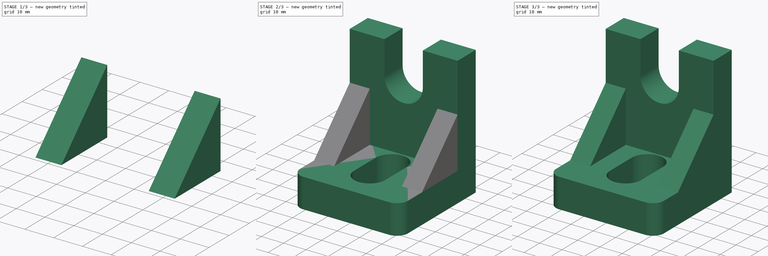
[diagram: build sequence overview — one tinted view per stage of 3, left to right]
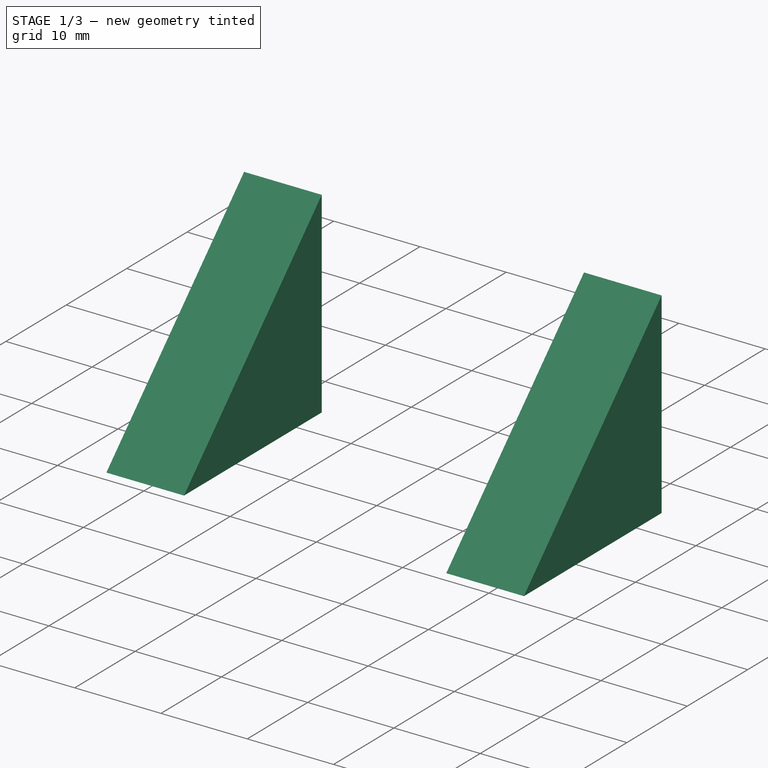
[diagram: stage 1 of 3 — iso view after this stage's code; geometry added in this stage tinted green]
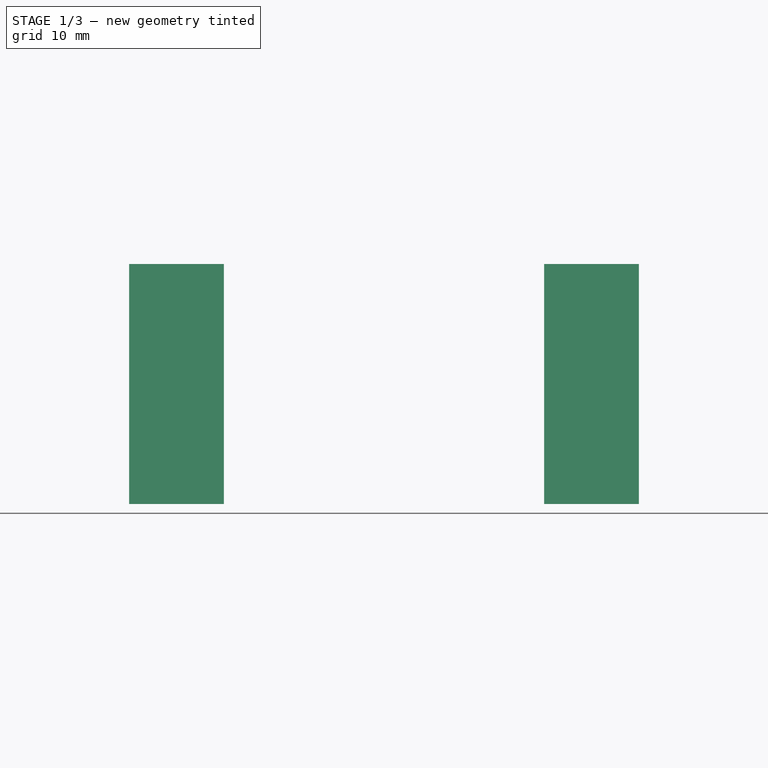
[diagram: stage 1 of 3 — front view after this stage's code; geometry added in this stage tinted green]
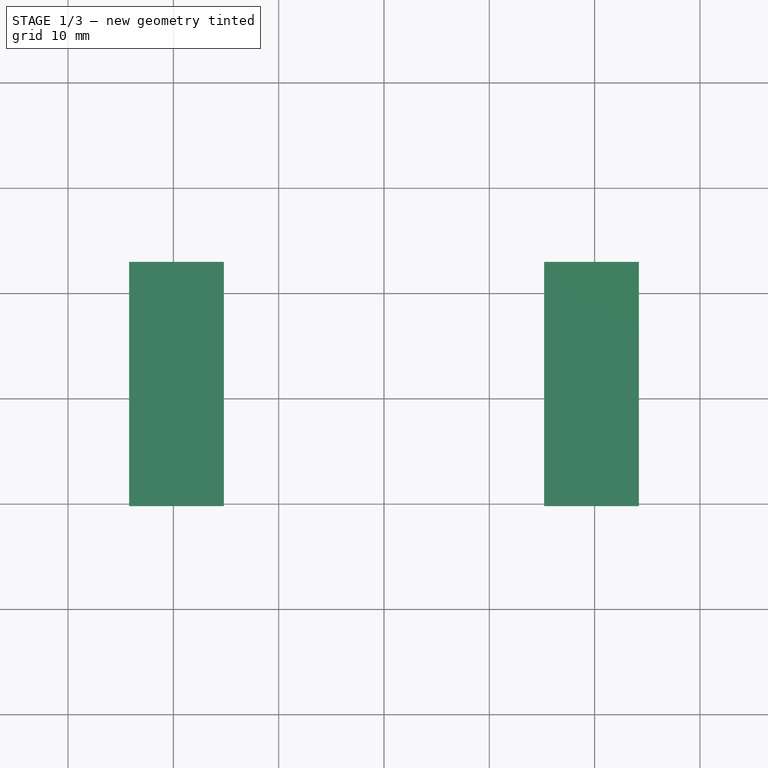
[diagram: stage 1 of 3 — top view after this stage's code; geometry added in this stage tinted green]
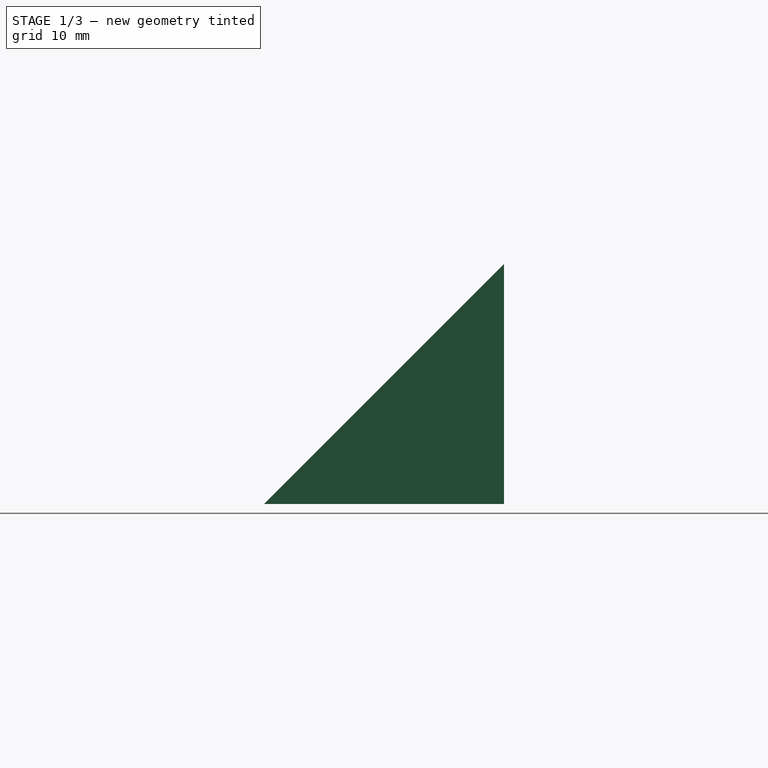
[diagram: stage 1 of 3 — right view after this stage's code; geometry added in this stage tinted green]
FCSTD DOCUMENT  (FreeCAD 0.16R6712 (Git))
Label: Huecos y escuadras
License: All rights reserved
LicenseURL: http://en.wikipedia.org/wiki/All_rights_reserved
objects: Sketcher::SketchObject×4, PartDesign::Pad×4, Part::MultiFuse×3
note: 15 computed .brp shape members not serialized (recipe doc carries the construction recipe); baked Part::Feature solids carry a one-line shape summary decoded from their .brp

FEATURE [Sketcher::SketchObject] Sketch002
  Placement = pos=(-24.2,0,0) rot=(0.57735,0.57735,0.57735;2.0944rad)
  sketch-geometry (3):
    g0: LineSegment StartX=-10.2 StartY=13.2 StartZ=0 EndX=12.6 EndY=13.2 EndZ=0
    g1: LineSegment StartX=12.6 StartY=13.2 StartZ=0 EndX=12.6 EndY=36 EndZ=0
    g2: LineSegment StartX=12.6 StartY=36 StartZ=0 EndX=-10.2 EndY=13.2 EndZ=0
  constraints (9):
    c: Horizontal(g0)
    c: Coincident(g0,g1)
    c: Vertical(g1)
    c: Coincident(g1,g2)
    c: Coincident(g2,g0)
    c: Equal(g0,g1)
    c: DistanceX(g0,g0) = 22.8
    c: DistanceY(g-1,g0) = 13.2
    c: DistanceX(g-1,g0) = 12.6
FEATURE [Sketcher::SketchObject] Sketch003
  Placement = pos=(24.2,0,0) rot=(0.57735,0.57735,0.57735;2.0944rad)
  sketch-geometry (3):
    g0: LineSegment StartX=-10.2 StartY=13.2 StartZ=0 EndX=12.6 EndY=13.2 EndZ=0
    g1: LineSegment StartX=12.6 StartY=13.2 StartZ=0 EndX=12.6 EndY=36 EndZ=0
    g2: LineSegment StartX=12.6 StartY=36 StartZ=0 EndX=-10.2 EndY=13.2 EndZ=0
  constraints (9):
    c: Horizontal(g0)
    c: Coincident(g0,g1)
    c: Vertical(g1)
    c: Coincident(g1,g2)
    c: Coincident(g2,g0)
    c: Equal(g0,g1)
    c: DistanceX(g0,g0) = 22.8
    c: DistanceY(g-1,g0) = 13.2
    c: DistanceX(g-1,g0) = 12.6
FEATURE [PartDesign::Pad] Pad002  label="Escuadra-izquierda"
  Length = 9
  Length2 = 100
  Placement = pos=(-24.2,0,0) rot=(0.57735,0.57735,0.57735;2.0944rad)
  Sketch = -> Sketch002
  Type = 0
FEATURE [PartDesign::Pad] Pad003  label="Escuadra-derecha"
  Length = 9
  Length2 = 100
  Placement = pos=(24.2,0,0) rot=(0.57735,0.57735,0.57735;2.0944rad)
  Reversed = true
  Sketch = -> Sketch003
  Type = 0
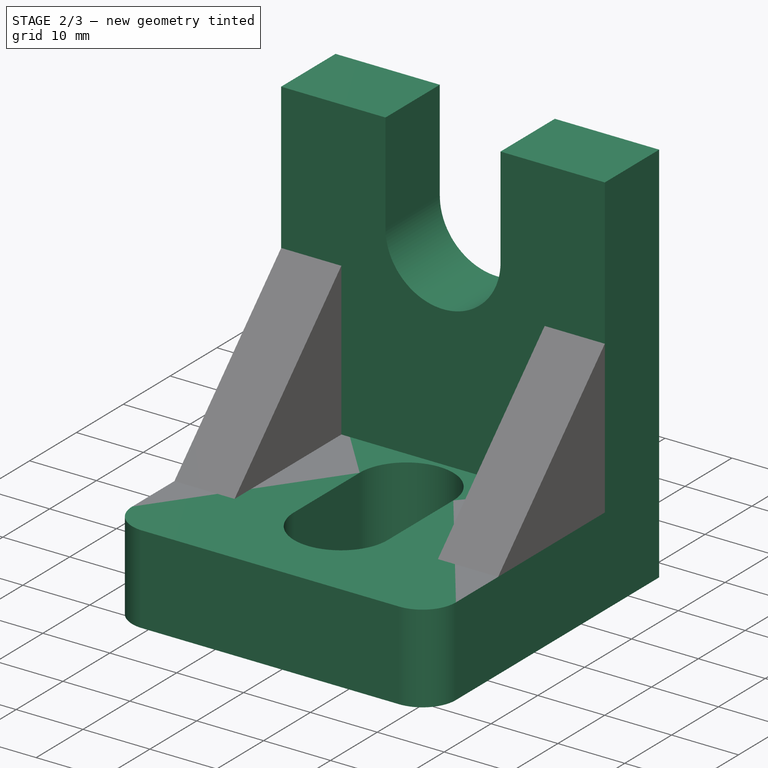
[diagram: stage 2 of 3 — iso view after this stage's code; geometry added in this stage tinted green]
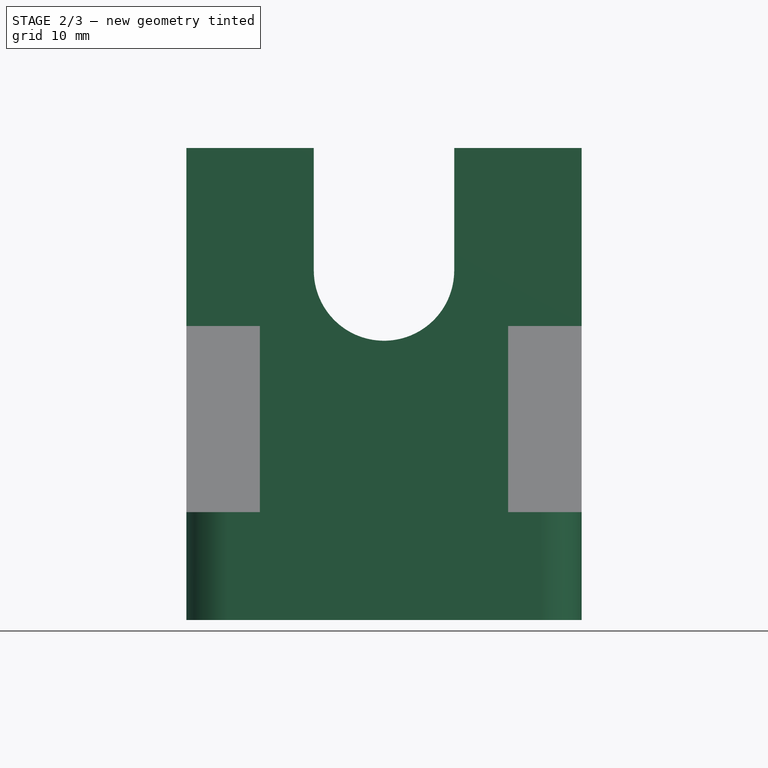
[diagram: stage 2 of 3 — front view after this stage's code; geometry added in this stage tinted green]
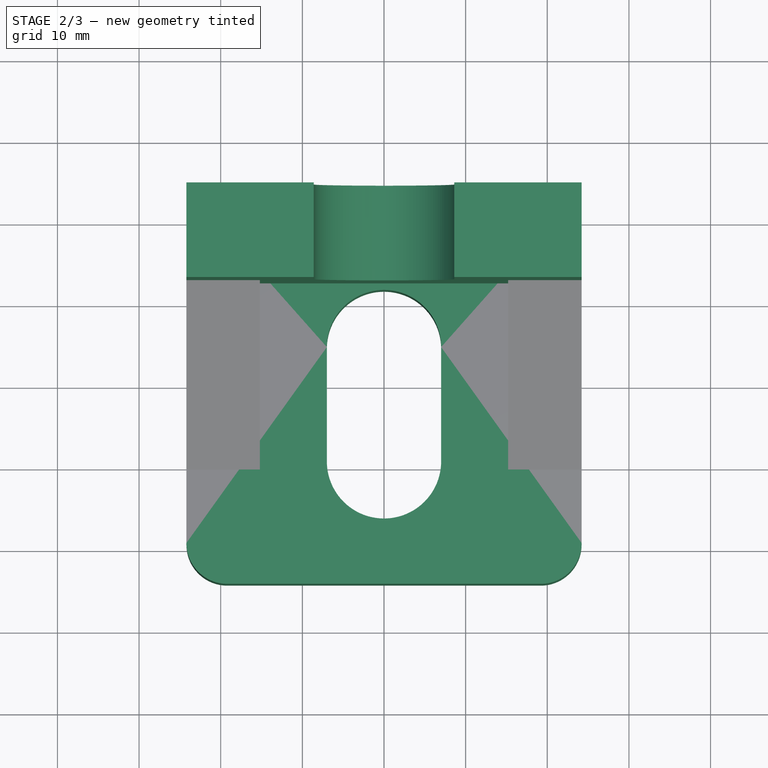
[diagram: stage 2 of 3 — top view after this stage's code; geometry added in this stage tinted green]
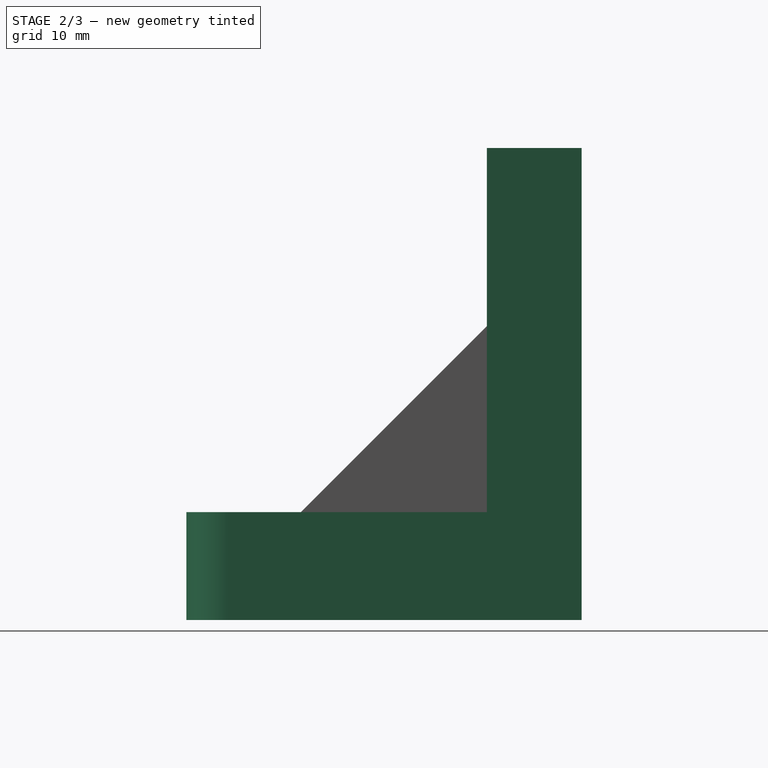
[diagram: stage 2 of 3 — right view after this stage's code; geometry added in this stage tinted green]
FEATURE [Sketcher::SketchObject] Sketch
  sketch-geometry (12):
    g0: LineSegment StartX=-24.2 StartY=24.2 StartZ=0 EndX=24.2 EndY=24.2 EndZ=0
    g1: LineSegment StartX=24.2 StartY=24.2 StartZ=0 EndX=24.2 EndY=-19.2 EndZ=0
    g2: LineSegment StartX=19.2 StartY=-24.2 StartZ=0 EndX=-19.2 EndY=-24.2 EndZ=0
    g3: LineSegment StartX=-24.2 StartY=-19.2 StartZ=0 EndX=-24.2 EndY=24.2 EndZ=0
    g4: ArcOfCircle CenterX=-19.2 CenterY=-19.2 CenterZ=0 NormalX=0 NormalY=0 NormalZ=1 Radius=5 StartAngle=3.14159 EndAngle=4.71239
    g5: ArcOfCircle CenterX=19.2 CenterY=-19.2 CenterZ=0 NormalX=0 NormalY=0 NormalZ=1 Radius=5 StartAngle=4.71239 EndAngle=6.28319
    g6: LineSegment [constr] StartX=7 StartY=4.8 StartZ=0 EndX=-7 EndY=4.8 EndZ=0
    g7: LineSegment StartX=7 StartY=4.8 StartZ=0 EndX=7 EndY=-9.2 EndZ=0
    g8: LineSegment [constr] StartX=7 StartY=-9.2 StartZ=0 EndX=-7 EndY=-9.2 EndZ=0
    g9: LineSegment StartX=-7 StartY=-9.2 StartZ=0 EndX=-7 EndY=4.8 EndZ=0
    g10: ArcOfCircle CenterX=0 CenterY=4.8 CenterZ=0 NormalX=0 NormalY=0 NormalZ=1 Radius=7 StartAngle=0 EndAngle=3.14159
    g11: ArcOfCircle CenterX=0 CenterY=-9.2 CenterZ=0 NormalX=0 NormalY=0 NormalZ=1 Radius=7 StartAngle=3.14159 EndAngle=6.28319
  constraints (37):
    c: Coincident(g0,g1)
    c: Coincident(g3,g0)
    c: Horizontal(g0)
    c: Horizontal(g2)
    c: Vertical(g1)
    c: Vertical(g3)
    c: Tangent(g3,g4) = 1.5708
    c: Tangent(g2,g4) = 1.5708
    c: Tangent(g2,g5) = 1.5708
    c: Tangent(g1,g5) = 1.5708
    c: DistanceY(g2,g0) = 48.4
    c: DistanceX(g0,g0) = 48.4
    c: Equal(g4,g5)
    c: Symmetric(g0,g0,g-2)
    c: Radius(g4) = 5
    c: DistanceY(g-1,g0) = 24.2
    c: Horizontal(g8)
    c: Vertical(g7)
    c: Vertical(g9)
    c: PointOnObject(g9,g11)
    c: PointOnObject(g8,g11)
    c: PointOnObject(g7,g10)
    c: PointOnObject(g11,g8)
    c: Coincident(g11,g8)
    c: Coincident(g11,g7)
    c: Coincident(g10,g6)
    c: DistanceY(g7,g7) = 14
    c: DistanceY(g2,g11) = 15
    c: Equal(g11,g10)
    c: Coincident(g10,g6)
    c: Coincident(g9,g6)
    c: Coincident(g7,g6)
    c: PointOnObject(g10,g6)
    c: Symmetric(g6,g6,g-2)
    c: Radius(g10) = 7
    c: Equal(g9,g7)
    c: Coincident(g8,g9)
FEATURE [PartDesign::Pad] Pad  label="Base"
  Length = 13.2
  Length2 = 100
  Sketch = -> Sketch
  Type = 0
FEATURE [Sketcher::SketchObject] Sketch001
  Placement = pos=(0,24.2,0) rot=(1,0,0;1.5708rad)
  sketch-geometry (9):
    g0: LineSegment StartX=-24.2 StartY=57.8 StartZ=0 EndX=-8.6 EndY=57.8 EndZ=0
    g1: LineSegment StartX=24.2 StartY=57.8 StartZ=0 EndX=24.2 EndY=13.2 EndZ=0
    g2: LineSegment StartX=24.2 StartY=13.2 StartZ=0 EndX=-24.2 EndY=13.2 EndZ=0
    g3: LineSegment StartX=-24.2 StartY=13.2 StartZ=0 EndX=-24.2 EndY=57.8 EndZ=0
    g4: LineSegment StartX=8.6 StartY=57.8 StartZ=0 EndX=8.6 EndY=42.8 EndZ=0
    g5: LineSegment [constr] StartX=8.6 StartY=42.8 StartZ=0 EndX=-8.6 EndY=42.8 EndZ=0
    g6: LineSegment StartX=-8.6 StartY=42.8 StartZ=0 EndX=-8.6 EndY=57.8 EndZ=0
    g7: LineSegment StartX=8.6 StartY=57.8 StartZ=0 EndX=24.2 EndY=57.8 EndZ=0
    g8: ArcOfCircle CenterX=0 CenterY=42.8 CenterZ=0 NormalX=0 NormalY=0 NormalZ=1 Radius=8.6 StartAngle=3.14159 EndAngle=6.28319
  constraints (26):
    c: Coincident(g1,g2)
    c: Coincident(g2,g3)
    c: Coincident(g3,g0)
    c: Horizontal(g2)
    c: Vertical(g1)
    c: Vertical(g3)
    c: DistanceX(g2,g1) = 48.4
    c: DistanceY(g8,g4) = 15
    c: Coincident(g8,g4)
    c: Radius(g8) = 8.6
    c: PointOnObject(g8,g5)
    c: Vertical(g6)
    c: Vertical(g4)
    c: Equal(g0,g7)
    c: Coincident(g4,g7)
    c: Coincident(g6,g0)
    c: Coincident(g5,g6)
    c: Coincident(g8,g5)
    c: Symmetric(g0,g1,g-2)
    c: Coincident(g1,g7)
    c: Horizontal(g0)
    c: Horizontal(g7)
    c: Horizontal(g5)
    c: DistanceY(g3,g3) = 44.6
    c: DistanceY(g-1,g1) = 13.2
    c: Coincident(g5,g4)
FEATURE [PartDesign::Pad] Pad001  label="Frontal"
  Length = 11.6
  Length2 = 100
  Placement = pos=(0,24.2,0) rot=(1,0,0;1.5708rad)
  Sketch = -> Sketch001
  Type = 0
FEATURE [Part::MultiFuse] Fusion001  label="Escuadras"
  Shapes = -> [Pad003,Pad002]
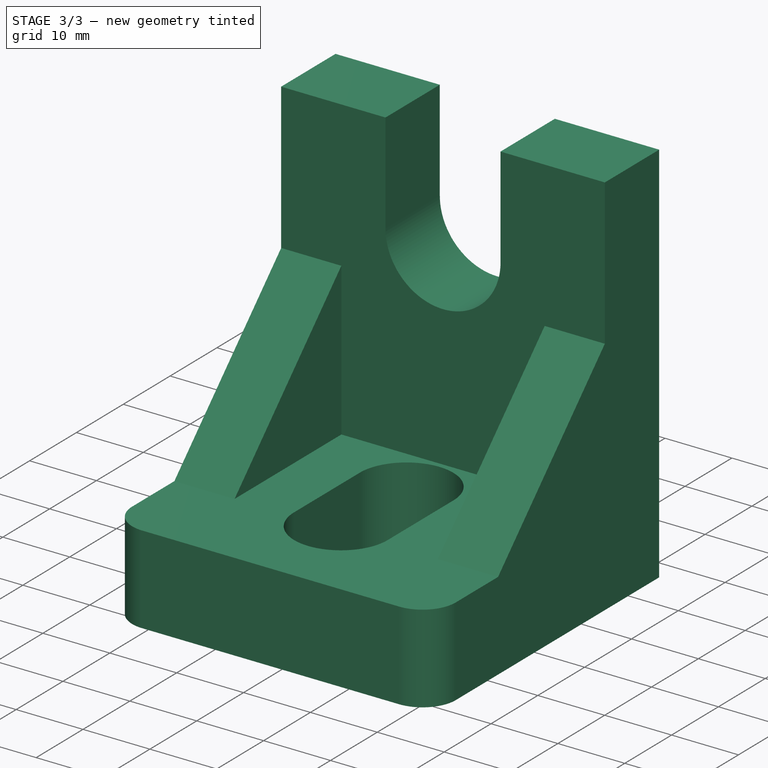
[diagram: stage 3 of 3 — iso view after this stage's code; geometry added in this stage tinted green]
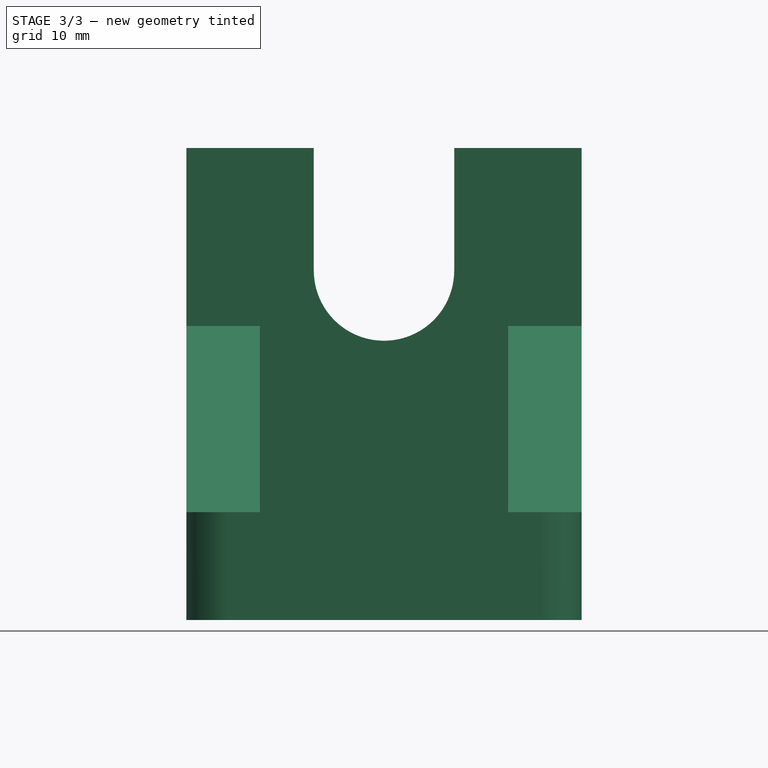
[diagram: stage 3 of 3 — front view after this stage's code; geometry added in this stage tinted green]
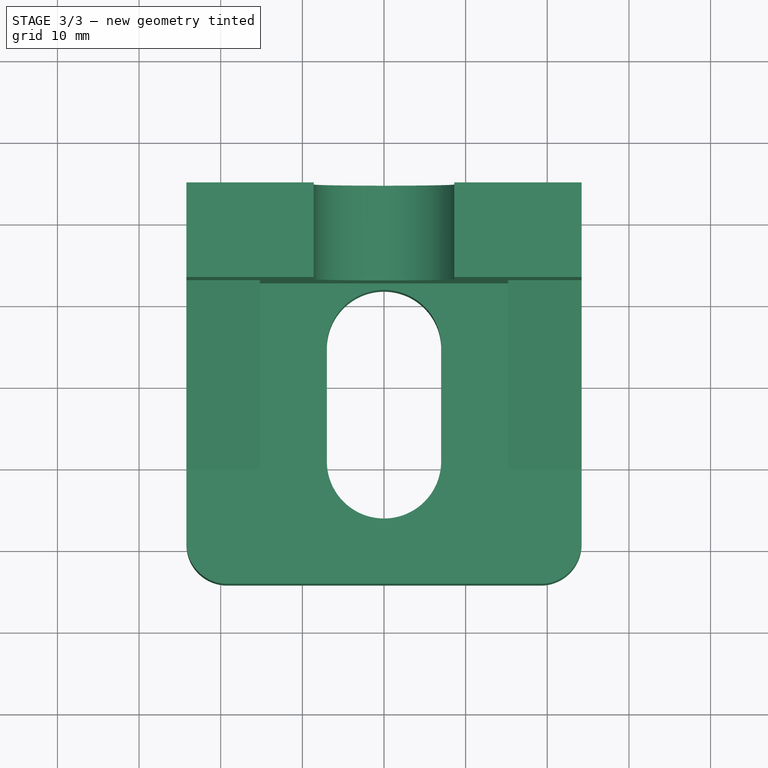
[diagram: stage 3 of 3 — top view after this stage's code; geometry added in this stage tinted green]
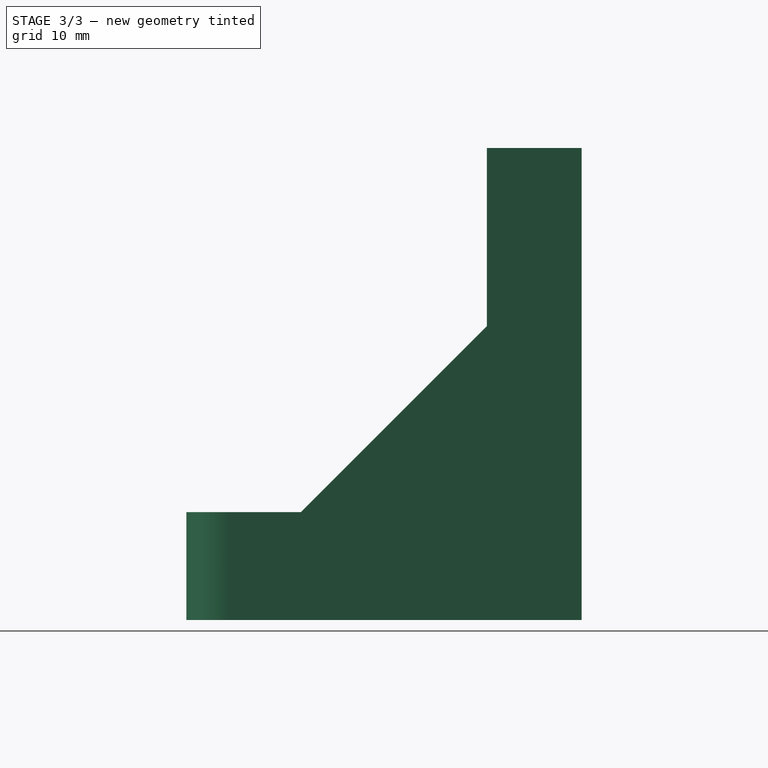
[diagram: stage 3 of 3 — right view after this stage's code; geometry added in this stage tinted green]
FEATURE [Part::MultiFuse] Fusion  label="Pieza sin chaflanes"
  Shapes = -> [Pad,Pad001]
FEATURE [Part::MultiFuse] Fusion002  label="Huecos-escuadras"
  Shapes = -> [Fusion001,Fusion]
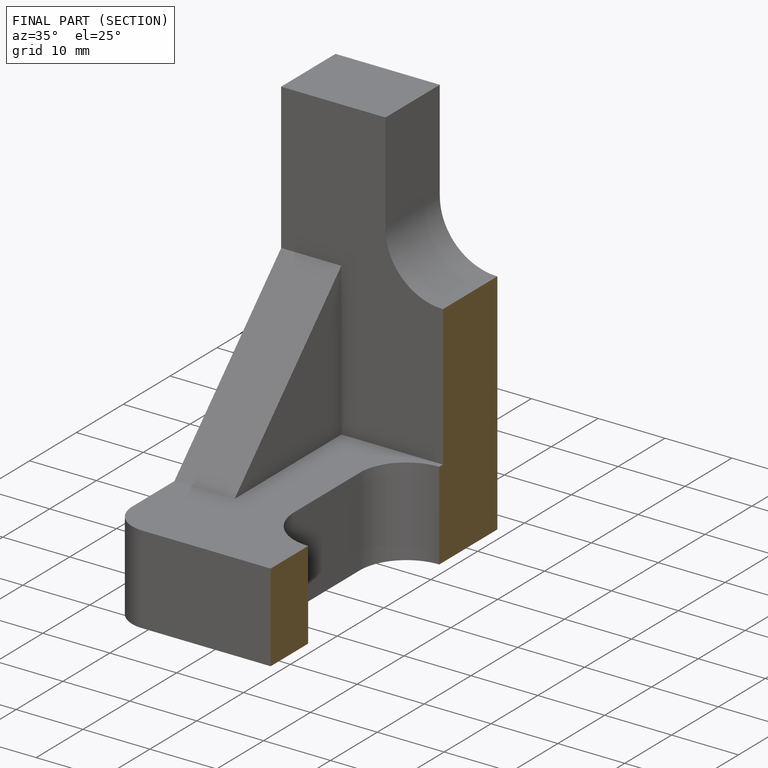
[diagram: finished part — half-section view (interior)]
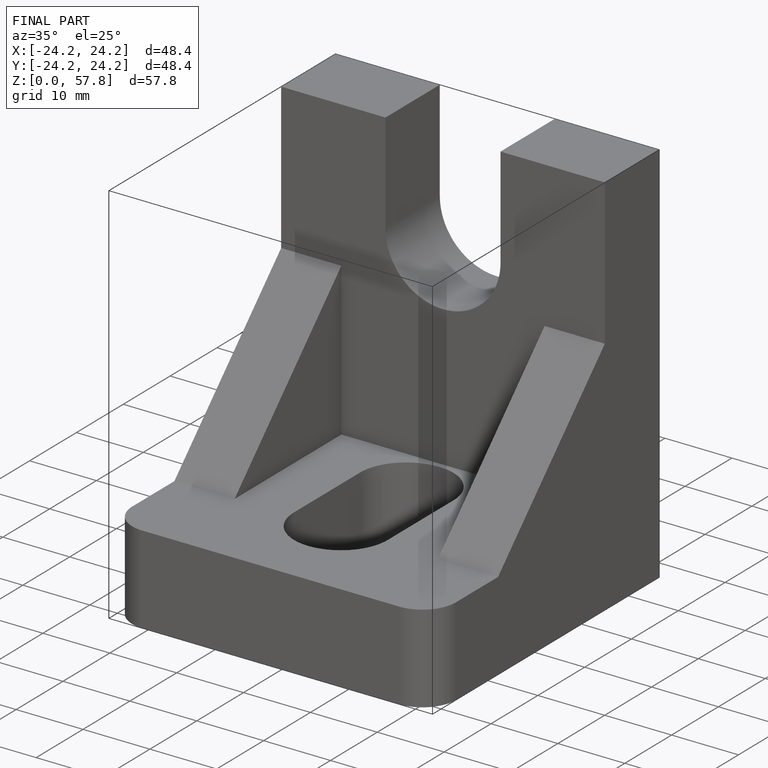
[diagram: finished part — iso view with bounding-box wireframe]
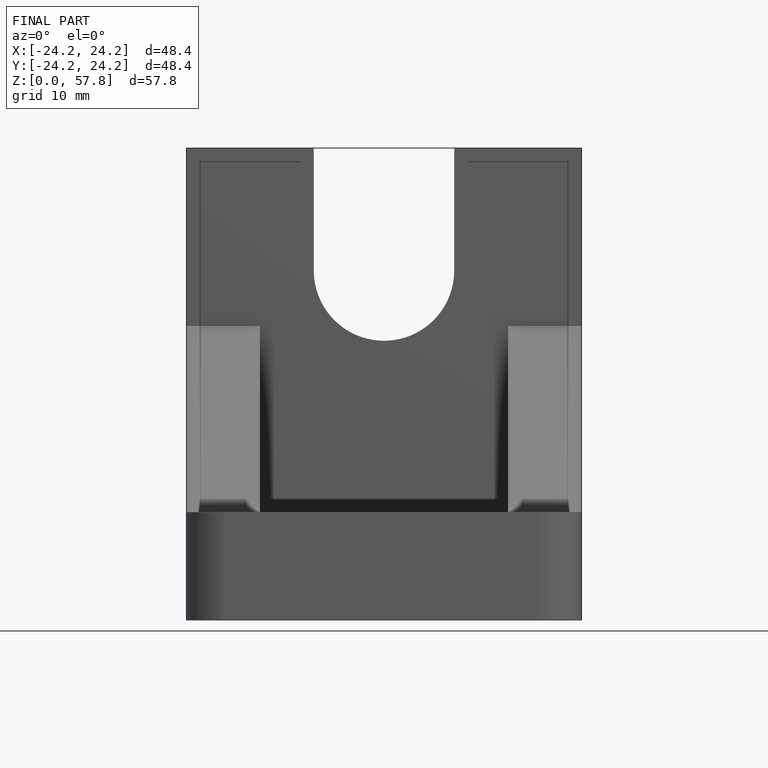
[diagram: finished part — front view with bounding-box wireframe]
